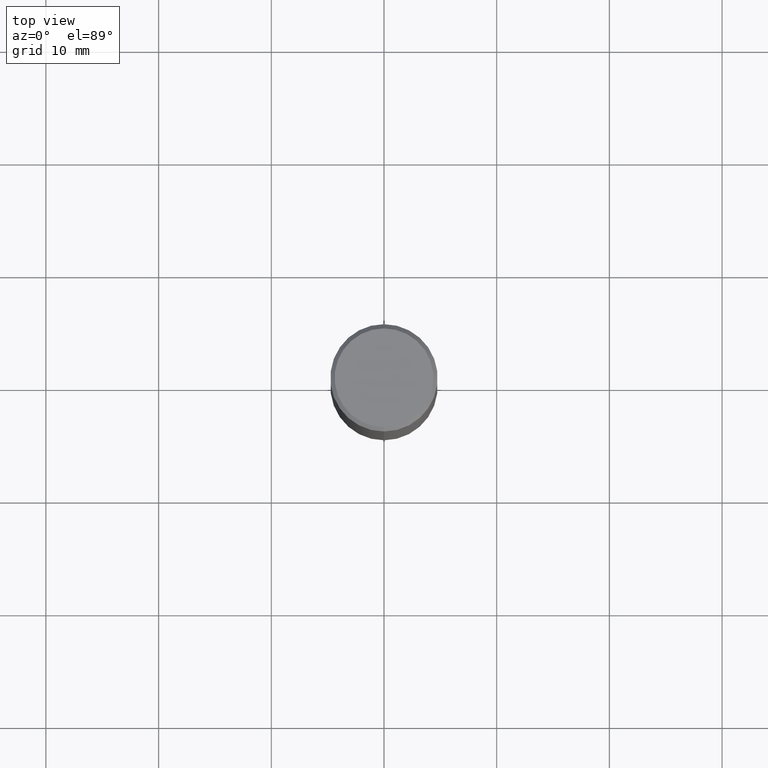
[diagram: clean part render]
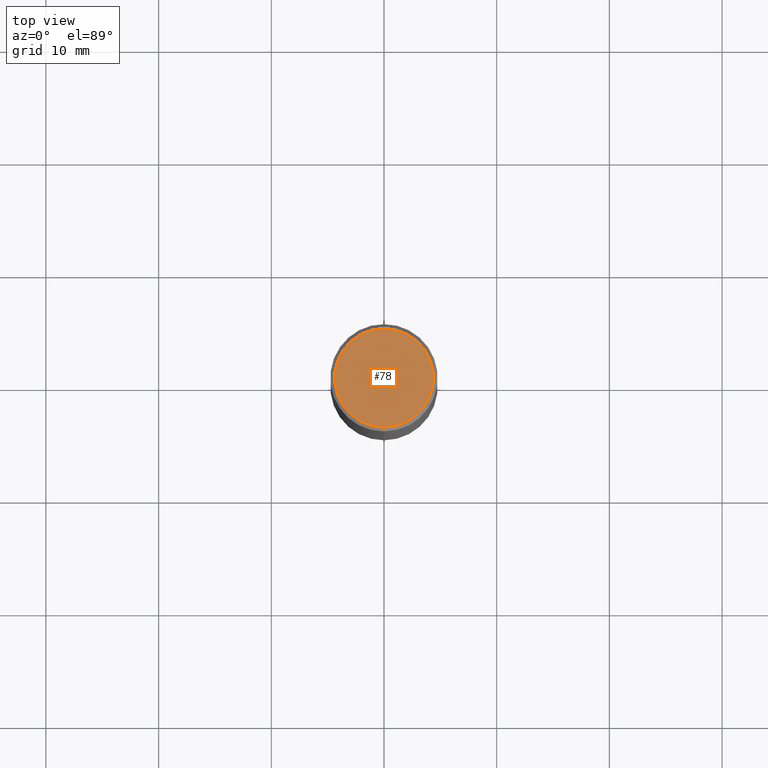
[diagram: same view with one face highlighted and labeled with its STEP entity id]
A machine part, top view. The second image highlights one B-rep face of the part: STEP entity #78.
In plain terms, the highlighted planar face has unit normal (0, -0, -1).
Its self-contained STEP definition (entity closure, byte-faithful):
#17 = CARTESIAN_POINT ( 'NONE',  ( 2.720611319883190822E-48, -3.882879628438597876E-34, -1.112306348986367091E-19 ) ) ;
#78 = ADVANCED_FACE ( 'NONE', ( #198 ), #121, .F. ) ;
#84 = AXIS2_PLACEMENT_3D ( 'NONE', #251, #294, #377 ) ;
#99 = VERTEX_POINT ( 'NONE', #366 ) ;
#100 = DIRECTION ( 'NONE',  ( -2.445919078284912062E-29, 3.490836523568370866E-15, 1.000000000000000000 ) ) ;
#121 = PLANE ( 'NONE',  #148 ) ;
#148 = AXIS2_PLACEMENT_3D ( 'NONE', #202, #446, #482 ) ;
#149 = VERTEX_POINT ( 'NONE', #402 ) ;
#192 = AXIS2_PLACEMENT_3D ( 'NONE', #17, #100, #326 ) ;
#198 = FACE_OUTER_BOUND ( 'NONE', #384, .T. ) ;
#202 = CARTESIAN_POINT ( 'NONE',  ( 1.204561061900881047E-15, 0.1725000000000000144, -6.022249156329932853E-16 ) ) ;
#233 = EDGE_CURVE ( 'NONE', #149, #99, #425, .T. ) ;
#251 = CARTESIAN_POINT ( 'NONE',  ( 2.720611319883190822E-48, -3.882879628438597876E-34, -1.112306348986367091E-19 ) ) ;
#294 = DIRECTION ( 'NONE',  ( -2.445919078284912062E-29, 3.490836523568370866E-15, 1.000000000000000000 ) ) ;
#326 = DIRECTION ( 'NONE',  ( -6.982962677686266711E-15, -1.000000000000000000, 3.490836523568370472E-15 ) ) ;
#336 = ORIENTED_EDGE ( 'NONE', *, *, #233, .T. ) ;
#366 = CARTESIAN_POINT ( 'NONE',  ( 1.256933281983528323E-15, 0.1725000000000000144, -6.022805309504425943E-16 ) ) ;
#377 = DIRECTION ( 'NONE',  ( -6.982962677686266711E-15, -1.000000000000000000, 3.490836523568370472E-15 ) ) ;
#384 = EDGE_LOOP ( 'NONE', ( #456, #336 ) ) ;
#402 = CARTESIAN_POINT ( 'NONE',  ( -1.234889639598875176E-15, -0.1725000000000000144, 6.020580696806453585E-16 ) ) ;
#414 = CIRCLE ( 'NONE', #84, 0.1725000000000000144 ) ;
#425 = CIRCLE ( 'NONE', #192, 0.1725000000000000144 ) ;
#446 = DIRECTION ( 'NONE',  ( 2.445919078284911781E-29, -3.490836523568370866E-15, -1.000000000000000000 ) ) ;
#456 = ORIENTED_EDGE ( 'NONE', *, *, #471, .T. ) ;
#471 = EDGE_CURVE ( 'NONE', #99, #149, #414, .T. ) ;
#482 = DIRECTION ( 'NONE',  ( 6.982962677686265922E-15, 1.000000000000000000, -3.490836523568370866E-15 ) ) ;